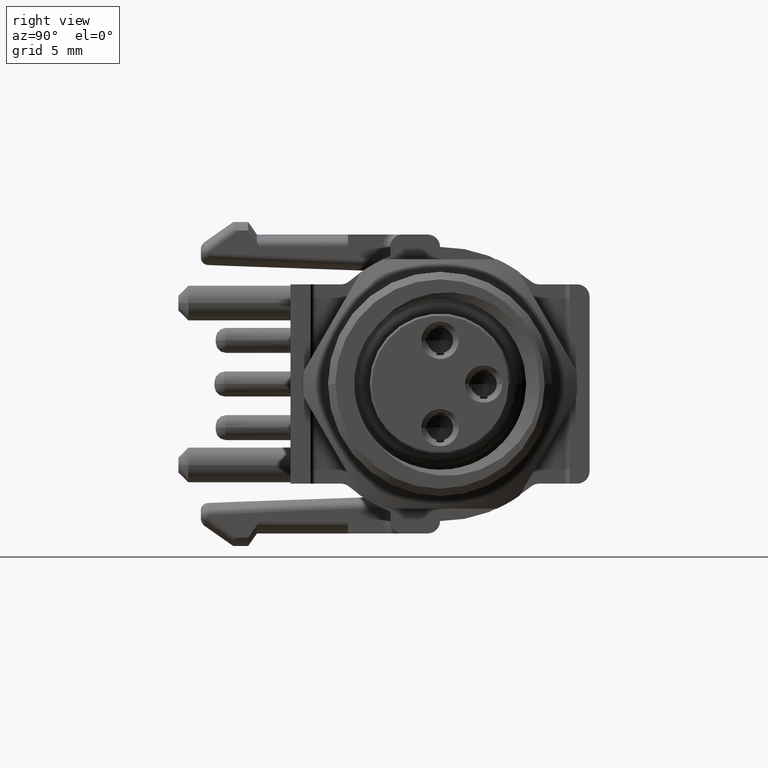
[diagram: clean part render]
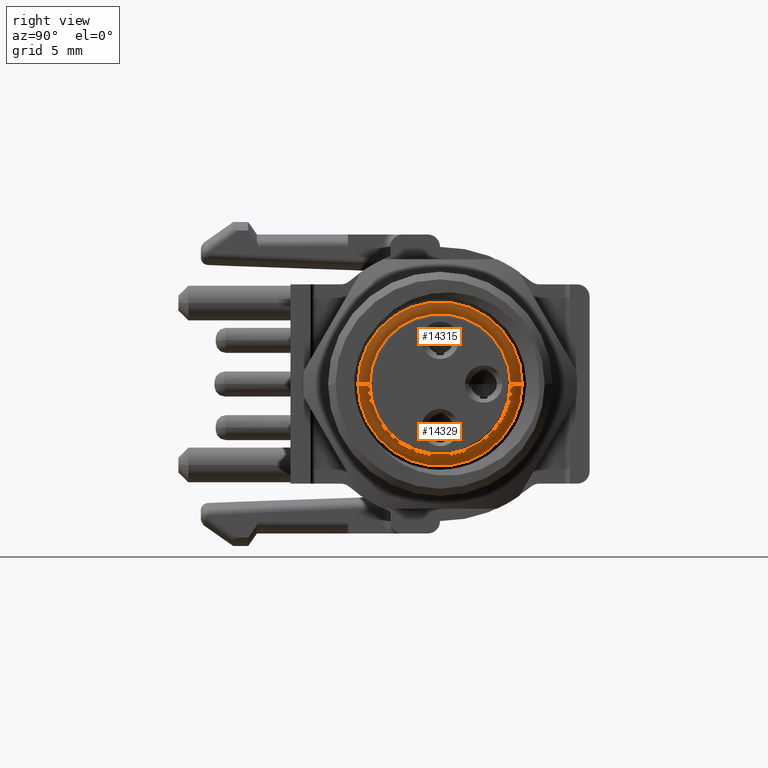
[diagram: same view with one multi-face feature highlighted, each face labeled with its STEP entity id]
A machine part, right view. The highlighted faces form ONE feature: a constant-radius fillet chain: 2 tangent blend faces with common blend radius 0.4 mm. The faces share edges in the B-rep.
Their STEP definitions:
[1] entity #14315 (Torus):
#51=CARTESIAN_POINT('',(2.477521984736E-1,0.E0,0.E0));
#52=DIRECTION('',(1.E0,0.E0,0.E0));
#53=DIRECTION('',(0.E0,1.E0,0.E0));
#54=AXIS2_PLACEMENT_3D('',#51,#52,#53);
#69=CARTESIAN_POINT('',(2.322834645706E-1,1.141732283463E-1,
-2.145095923670E-7));
#70=DIRECTION('',(0.E0,1.878808148935E-6,9.999999999982E-1));
#71=DIRECTION('',(9.822646028439E-1,-1.874999999997E-1,3.522765281438E-7));
#72=AXIS2_PLACEMENT_3D('',#69,#70,#71);
#74=CARTESIAN_POINT('',(2.322834645706E-1,-1.141732283463E-1,
2.145095912341E-7));
#75=DIRECTION('',(0.E0,1.878808148812E-6,9.999999999982E-1));
#76=DIRECTION('',(-9.822646028439E-1,1.874999999997E-1,-3.522765281209E-7));
#77=AXIS2_PLACEMENT_3D('',#74,#75,#76);
#84=CARTESIAN_POINT('',(2.168147306675E-1,0.E0,0.E0));
#85=DIRECTION('',(1.E0,0.E0,0.E0));
#86=DIRECTION('',(0.E0,1.E0,0.E0));
#87=AXIS2_PLACEMENT_3D('',#84,#85,#86);
#13706=CARTESIAN_POINT('',(2.477521984736E-1,-1.112204724409E-1,0.E0));
#13707=CARTESIAN_POINT('',(2.477521984736E-1,1.112204724409E-1,0.E0));
#13708=VERTEX_POINT('',#13706);
#13709=VERTEX_POINT('',#13707);
#13710=CARTESIAN_POINT('',(2.168147306675E-1,-1.112204724409E-1,0.E0));
#13711=CARTESIAN_POINT('',(2.168147306675E-1,1.112204724409E-1,0.E0));
#13712=VERTEX_POINT('',#13710);
#13713=VERTEX_POINT('',#13711);
#14301=CARTESIAN_POINT('',(2.322834645706E-1,0.E0,0.E0));
#14302=DIRECTION('',(1.E0,0.E0,0.E0));
#14303=DIRECTION('',(0.E0,-9.999999999982E-1,1.878808149057E-6));
#14304=AXIS2_PLACEMENT_3D('',#14301,#14302,#14303);
#14305=TOROIDAL_SURFACE('',#14304,1.141732283465E-1,1.574803149606E-2);
#14307=ORIENTED_EDGE('',*,*,#14306,.F.);
#14309=ORIENTED_EDGE('',*,*,#14308,.F.);
#14311=ORIENTED_EDGE('',*,*,#14310,.F.);
#14312=ORIENTED_EDGE('',*,*,#14291,.T.);
#14313=EDGE_LOOP('',(#14307,#14309,#14311,#14312));
#14314=FACE_OUTER_BOUND('',#14313,.F.);
#14315=ADVANCED_FACE('',(#14314),#14305,.T.);
#55=CIRCLE('',#54,1.112204724409E-1);
#73=CIRCLE('',#72,1.574803149606E-2);
#78=CIRCLE('',#77,1.574803149606E-2);
#88=CIRCLE('',#87,1.112204724409E-1);
#14291=EDGE_CURVE('',#13709,#13708,#55,.T.);
#14306=EDGE_CURVE('',#13712,#13708,#78,.T.);
#14308=EDGE_CURVE('',#13713,#13712,#88,.T.);
#14310=EDGE_CURVE('',#13709,#13713,#73,.T.);
[2] entity #14329 (Torus):
#69=CARTESIAN_POINT('',(2.322834645706E-1,1.141732283463E-1,
-2.145095923670E-7));
#70=DIRECTION('',(0.E0,1.878808148935E-6,9.999999999982E-1));
#71=DIRECTION('',(9.822646028439E-1,-1.874999999997E-1,3.522765281438E-7));
#72=AXIS2_PLACEMENT_3D('',#69,#70,#71);
#74=CARTESIAN_POINT('',(2.322834645706E-1,-1.141732283463E-1,
2.145095912341E-7));
#75=DIRECTION('',(0.E0,1.878808148812E-6,9.999999999982E-1));
#76=DIRECTION('',(-9.822646028439E-1,1.874999999997E-1,-3.522765281209E-7));
#77=AXIS2_PLACEMENT_3D('',#74,#75,#76);
#79=CARTESIAN_POINT('',(2.168147306675E-1,0.E0,0.E0));
#80=DIRECTION('',(1.E0,0.E0,0.E0));
#81=DIRECTION('',(0.E0,-1.E0,0.E0));
#82=AXIS2_PLACEMENT_3D('',#79,#80,#81);
#10945=CARTESIAN_POINT('',(2.477521984736E-1,0.E0,0.E0));
#10946=DIRECTION('',(1.E0,0.E0,0.E0));
#10947=DIRECTION('',(0.E0,-1.E0,0.E0));
#10948=AXIS2_PLACEMENT_3D('',#10945,#10946,#10947);
#13706=CARTESIAN_POINT('',(2.477521984736E-1,-1.112204724409E-1,0.E0));
#13707=CARTESIAN_POINT('',(2.477521984736E-1,1.112204724409E-1,0.E0));
#13708=VERTEX_POINT('',#13706);
#13709=VERTEX_POINT('',#13707);
#13710=CARTESIAN_POINT('',(2.168147306675E-1,-1.112204724409E-1,0.E0));
#13711=CARTESIAN_POINT('',(2.168147306675E-1,1.112204724409E-1,0.E0));
#13712=VERTEX_POINT('',#13710);
#13713=VERTEX_POINT('',#13711);
#14316=CARTESIAN_POINT('',(2.322834645706E-1,0.E0,0.E0));
#14317=DIRECTION('',(1.E0,0.E0,0.E0));
#14318=DIRECTION('',(0.E0,-9.999999999982E-1,1.878808149057E-6));
#14319=AXIS2_PLACEMENT_3D('',#14316,#14317,#14318);
#14320=TOROIDAL_SURFACE('',#14319,1.141732283465E-1,1.574803149606E-2);
#14321=ORIENTED_EDGE('',*,*,#14310,.T.);
#14323=ORIENTED_EDGE('',*,*,#14322,.F.);
#14324=ORIENTED_EDGE('',*,*,#14306,.T.);
#14326=ORIENTED_EDGE('',*,*,#14325,.T.);
#14327=EDGE_LOOP('',(#14321,#14323,#14324,#14326));
#14328=FACE_OUTER_BOUND('',#14327,.F.);
#14329=ADVANCED_FACE('',(#14328),#14320,.T.);
#73=CIRCLE('',#72,1.574803149606E-2);
#78=CIRCLE('',#77,1.574803149606E-2);
#83=CIRCLE('',#82,1.112204724409E-1);
#10949=CIRCLE('',#10948,1.112204724409E-1);
#14306=EDGE_CURVE('',#13712,#13708,#78,.T.);
#14310=EDGE_CURVE('',#13709,#13713,#73,.T.);
#14322=EDGE_CURVE('',#13712,#13713,#83,.T.);
#14325=EDGE_CURVE('',#13708,#13709,#10949,.T.);